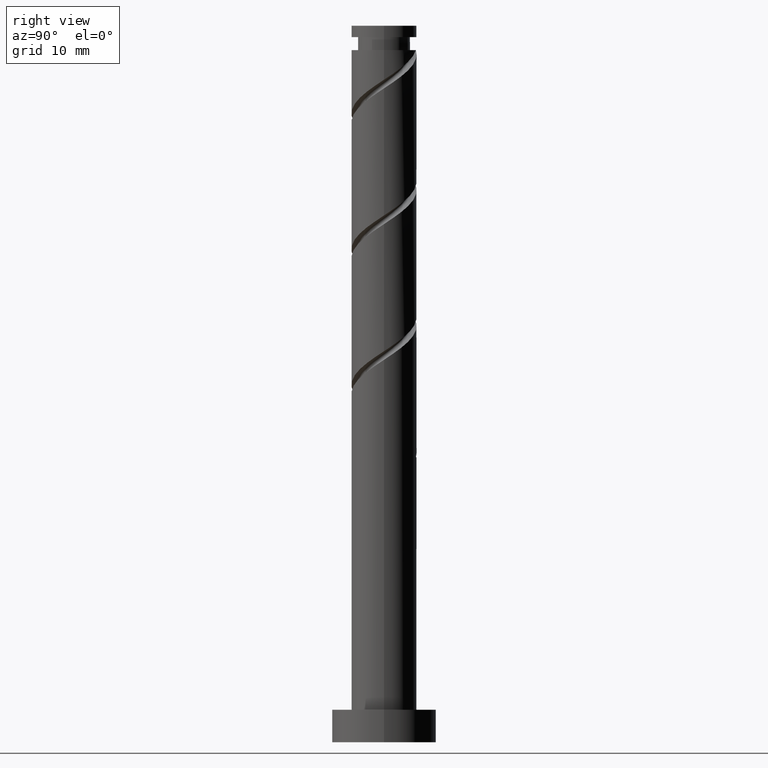
[diagram: clean part render]
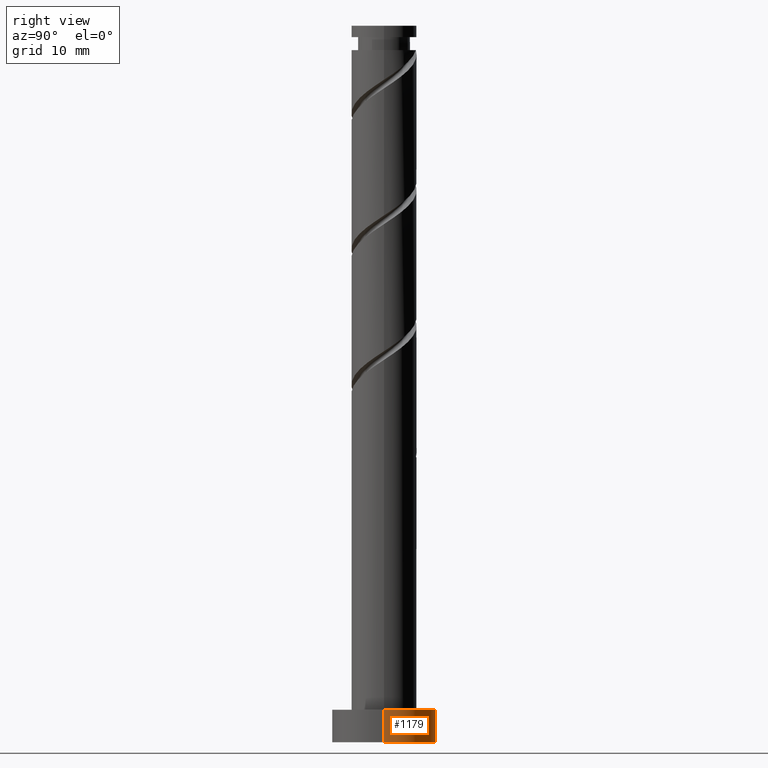
[diagram: same view with one face highlighted and labeled with its STEP entity id]
A machine part, right view. The second image highlights one B-rep face of the part: STEP entity #1179.
In plain terms, the highlighted cylindrical surface (partial cylindrical patch) has radius 8 mm, axis along (-0, -0, -1).
Its self-contained STEP definition (entity closure, byte-faithful):
#64 = CARTESIAN_POINT ( 'NONE',  ( 8.000000000000000000, 9.797174393178825657E-16, 0.000000000000000000 ) ) ;
#79 = FACE_OUTER_BOUND ( 'NONE', #84, .T. ) ;
#84 = EDGE_LOOP ( 'NONE', ( #1171, #1350, #325, #270 ) ) ;
#130 = AXIS2_PLACEMENT_3D ( 'NONE', #450, #1188, #1075 ) ;
#159 = CARTESIAN_POINT ( 'NONE',  ( 8.000000000000000000, 9.797174393178825657E-16, 5.000000000000000000 ) ) ;
#188 = CARTESIAN_POINT ( 'NONE',  ( -8.000000000000000000, 0.000000000000000000, 5.000000000000000000 ) ) ;
#224 = EDGE_CURVE ( 'NONE', #1395, #1575, #1226, .T. ) ;
#237 = AXIS2_PLACEMENT_3D ( 'NONE', #1508, #1266, #1492 ) ;
#270 = ORIENTED_EDGE ( 'NONE', *, *, #361, .F. ) ;
#295 = LINE ( 'NONE', #159, #729 ) ;
#319 = DIRECTION ( 'NONE',  ( -0.000000000000000000, -0.000000000000000000, -1.000000000000000000 ) ) ;
#325 = ORIENTED_EDGE ( 'NONE', *, *, #328, .T. ) ;
#328 = EDGE_CURVE ( 'NONE', #981, #406, #652, .T. ) ;
#343 = LINE ( 'NONE', #188, #524 ) ;
#361 = EDGE_CURVE ( 'NONE', #1575, #406, #343, .T. ) ;
#406 = VERTEX_POINT ( 'NONE', #712 ) ;
#450 = CARTESIAN_POINT ( 'NONE',  ( 0.000000000000000000, 0.000000000000000000, 0.000000000000000000 ) ) ;
#524 = VECTOR ( 'NONE', #826, 1000.000000000000000 ) ;
#652 = CIRCLE ( 'NONE', #130, 8.000000000000000000 ) ;
#693 = DIRECTION ( 'NONE',  ( -1.000000000000000000, 0.000000000000000000, 0.000000000000000000 ) ) ;
#712 = CARTESIAN_POINT ( 'NONE',  ( -8.000000000000000000, 0.000000000000000000, 0.000000000000000000 ) ) ;
#729 = VECTOR ( 'NONE', #905, 1000.000000000000000 ) ;
#766 = CARTESIAN_POINT ( 'NONE',  ( 8.000000000000000000, 9.797174393178825657E-16, 5.000000000000000000 ) ) ;
#796 = AXIS2_PLACEMENT_3D ( 'NONE', #1295, #319, #693 ) ;
#826 = DIRECTION ( 'NONE',  ( -0.000000000000000000, -0.000000000000000000, -1.000000000000000000 ) ) ;
#905 = DIRECTION ( 'NONE',  ( -0.000000000000000000, -0.000000000000000000, -1.000000000000000000 ) ) ;
#981 = VERTEX_POINT ( 'NONE', #64 ) ;
#1075 = DIRECTION ( 'NONE',  ( 1.000000000000000000, 0.000000000000000000, 0.000000000000000000 ) ) ;
#1171 = ORIENTED_EDGE ( 'NONE', *, *, #224, .F. ) ;
#1179 = ADVANCED_FACE ( 'NONE', ( #79 ), #1428, .T. ) ;
#1187 = CARTESIAN_POINT ( 'NONE',  ( -8.000000000000000000, 0.000000000000000000, 5.000000000000000000 ) ) ;
#1188 = DIRECTION ( 'NONE',  ( 0.000000000000000000, 0.000000000000000000, 1.000000000000000000 ) ) ;
#1226 = CIRCLE ( 'NONE', #237, 8.000000000000000000 ) ;
#1266 = DIRECTION ( 'NONE',  ( 0.000000000000000000, 0.000000000000000000, 1.000000000000000000 ) ) ;
#1295 = CARTESIAN_POINT ( 'NONE',  ( 0.000000000000000000, 0.000000000000000000, 5.000000000000000000 ) ) ;
#1350 = ORIENTED_EDGE ( 'NONE', *, *, #1431, .T. ) ;
#1395 = VERTEX_POINT ( 'NONE', #766 ) ;
#1428 = CYLINDRICAL_SURFACE ( 'NONE', #796, 8.000000000000000000 ) ;
#1431 = EDGE_CURVE ( 'NONE', #1395, #981, #295, .T. ) ;
#1492 = DIRECTION ( 'NONE',  ( 1.000000000000000000, 0.000000000000000000, 0.000000000000000000 ) ) ;
#1508 = CARTESIAN_POINT ( 'NONE',  ( 0.000000000000000000, 0.000000000000000000, 5.000000000000000000 ) ) ;
#1575 = VERTEX_POINT ( 'NONE', #1187 ) ;